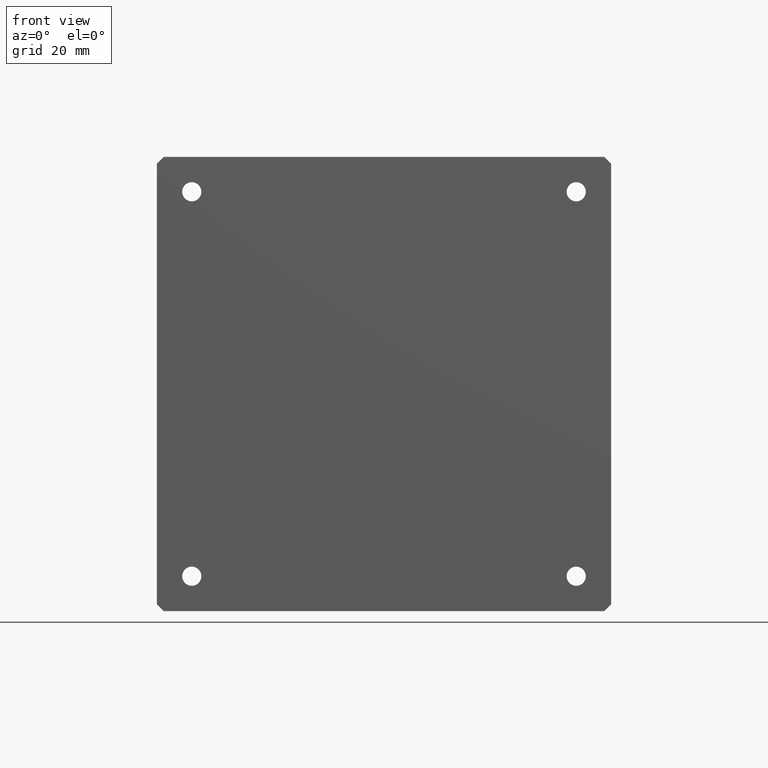
[diagram: clean part render]
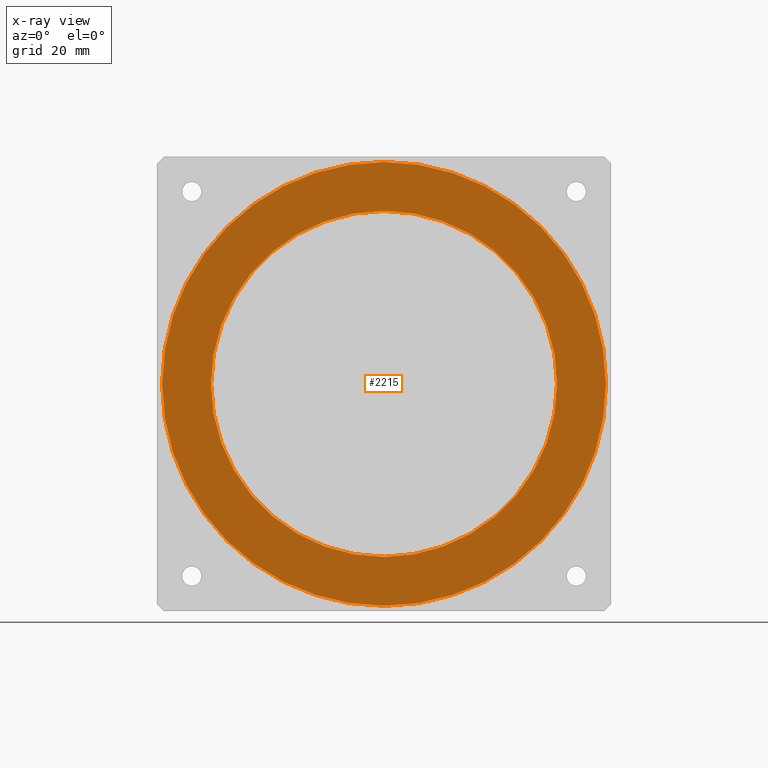
[diagram: x-ray — body ghosted, one internal face saturated and labeled with its STEP entity id]
A machine part, front view, then the same camera in x-ray: the body is ghosted and one INTERNAL B-rep face — a face not visible from any outside direction — is saturated and labeled: STEP entity #2215.
In plain terms, the highlighted planar face has unit normal (0, 1, 0).
Its self-contained STEP definition (entity closure, byte-faithful):
#2090=CARTESIAN_POINT('',(0.E0,0.E0,0.E0));
#2091=DIRECTION('',(0.E0,0.E0,-1.E0));
#2092=DIRECTION('',(1.E0,0.E0,0.E0));
#2093=AXIS2_PLACEMENT_3D('',#2090,#2091,#2092);
#2098=CARTESIAN_POINT('',(0.E0,0.E0,0.E0));
#2099=DIRECTION('',(0.E0,0.E0,-1.E0));
#2100=DIRECTION('',(-1.E0,0.E0,0.E0));
#2101=AXIS2_PLACEMENT_3D('',#2098,#2099,#2100);
#2106=CARTESIAN_POINT('',(0.E0,0.E0,0.E0));
#2107=DIRECTION('',(0.E0,0.E0,1.E0));
#2108=DIRECTION('',(1.E0,0.E0,0.E0));
#2109=AXIS2_PLACEMENT_3D('',#2106,#2107,#2108);
#2114=CARTESIAN_POINT('',(0.E0,0.E0,0.E0));
#2115=DIRECTION('',(0.E0,0.E0,1.E0));
#2116=DIRECTION('',(-1.E0,0.E0,0.E0));
#2117=AXIS2_PLACEMENT_3D('',#2114,#2115,#2116);
#2182=CARTESIAN_POINT('',(4.95E1,0.E0,0.E0));
#2183=CARTESIAN_POINT('',(-4.95E1,0.E0,0.E0));
#2184=VERTEX_POINT('',#2182);
#2185=VERTEX_POINT('',#2183);
#2186=CARTESIAN_POINT('',(6.35E1,0.E0,0.E0));
#2187=CARTESIAN_POINT('',(-6.35E1,1.555301434917E-14,0.E0));
#2188=VERTEX_POINT('',#2186);
#2189=VERTEX_POINT('',#2187);
#2198=CARTESIAN_POINT('',(0.E0,0.E0,0.E0));
#2199=DIRECTION('',(0.E0,0.E0,1.E0));
#2200=DIRECTION('',(1.E0,0.E0,0.E0));
#2201=AXIS2_PLACEMENT_3D('',#2198,#2199,#2200);
#2202=PLANE('',#2201);
#2204=ORIENTED_EDGE('',*,*,#2203,.T.);
#2206=ORIENTED_EDGE('',*,*,#2205,.T.);
#2207=EDGE_LOOP('',(#2204,#2206));
#2208=FACE_OUTER_BOUND('',#2207,.F.);
#2210=ORIENTED_EDGE('',*,*,#2209,.T.);
#2212=ORIENTED_EDGE('',*,*,#2211,.T.);
#2213=EDGE_LOOP('',(#2210,#2212));
#2214=FACE_BOUND('',#2213,.F.);
#2094=CIRCLE('',#2093,4.95E1);
#2102=CIRCLE('',#2101,4.95E1);
#2110=CIRCLE('',#2109,6.35E1);
#2118=CIRCLE('',#2117,6.35E1);
#2203=EDGE_CURVE('',#2188,#2189,#2110,.T.);
#2205=EDGE_CURVE('',#2189,#2188,#2118,.T.);
#2209=EDGE_CURVE('',#2184,#2185,#2094,.T.);
#2211=EDGE_CURVE('',#2185,#2184,#2102,.T.);
#2215=ADVANCED_FACE('',(#2208,#2214),#2202,.F.);